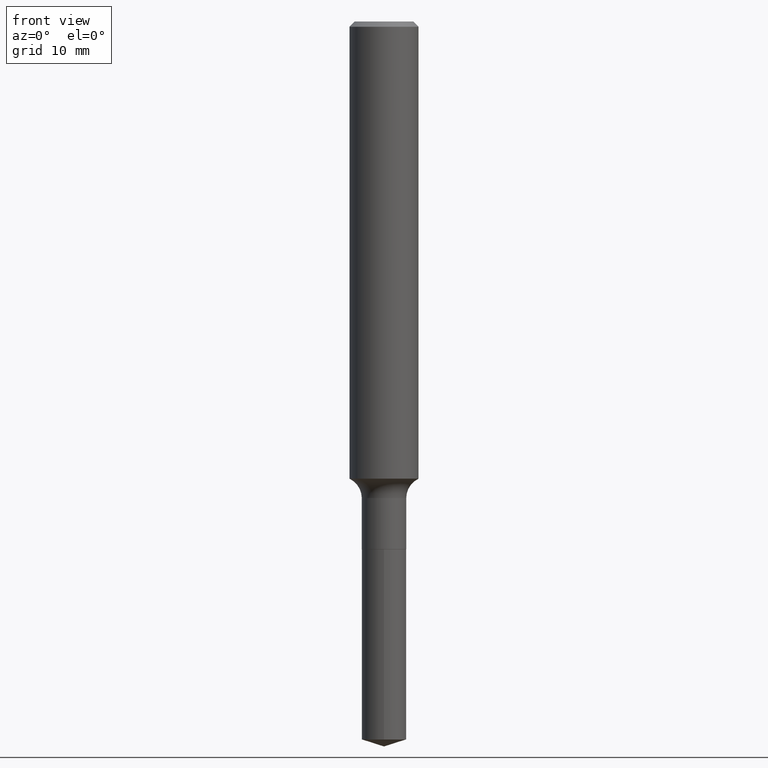
[diagram: clean part render]
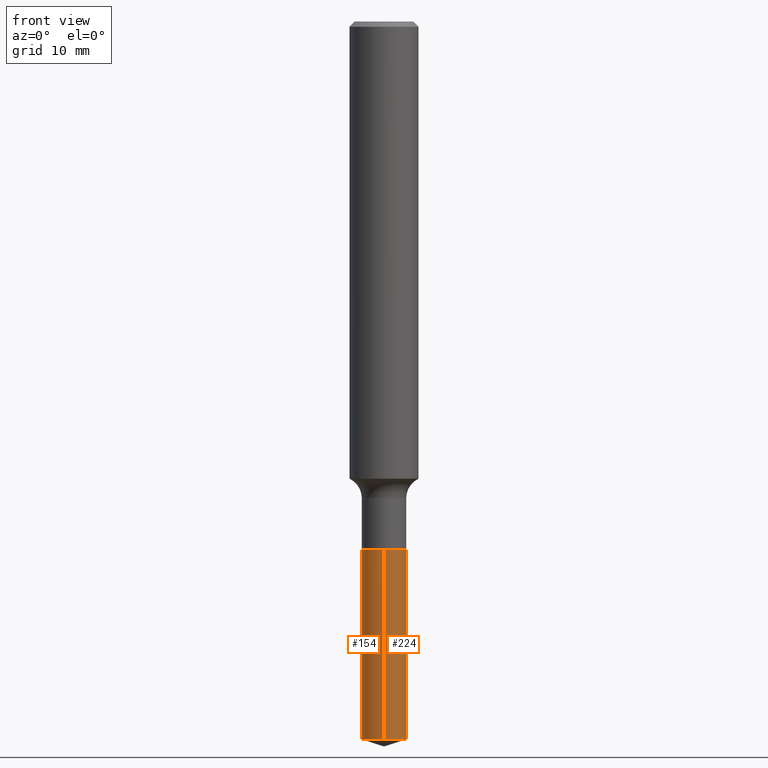
[diagram: same view with one multi-face feature highlighted, each face labeled with its STEP entity id]
A machine part, front view. The highlighted faces form ONE feature: a constant-radius fillet chain: 2 tangent blend faces with common blend radius 2.0447 mm. The faces share edges in the B-rep.
Their STEP definitions:
[1] entity #154 (Cylinder):
#34 = CARTESIAN_POINT ( 'NONE',  ( 4.673290888619796010E-29, -6.672220838529250908E-15, -1.910999999999999810 ) ) ;
#41 = EDGE_CURVE ( 'NONE', #440, #401, #192, .T. ) ;
#51 = LINE ( 'NONE', #474, #273 ) ;
#68 = DIRECTION ( 'NONE',  ( -6.982962677686266711E-15, -1.000000000000000000, 3.393599992129519526E-15 ) ) ;
#81 = DIRECTION ( 'NONE',  ( -2.444714620977216866E-29, 3.492561374986442879E-15, 1.000000000000000000 ) ) ;
#83 = CARTESIAN_POINT ( 'NONE',  ( 4.673290888619796010E-29, -6.672220838529250908E-15, -1.910999999999999810 ) ) ;
#112 = LINE ( 'NONE', #421, #338 ) ;
#114 = EDGE_CURVE ( 'NONE', #314, #480, #227, .T. ) ;
#154 = ADVANCED_FACE ( 'NONE', ( #191 ), #262, .T. ) ;
#182 = EDGE_CURVE ( 'NONE', #480, #401, #112, .T. ) ;
#191 = FACE_OUTER_BOUND ( 'NONE', #347, .T. ) ;
#192 = CIRCLE ( 'NONE', #200, 0.08050000000000000211 ) ;
#200 = AXIS2_PLACEMENT_3D ( 'NONE', #34, #412, #68 ) ;
#223 = ORIENTED_EDGE ( 'NONE', *, *, #41, .F. ) ;
#226 = DIRECTION ( 'NONE',  ( -2.444714620977216866E-29, 3.492561374986442879E-15, 1.000000000000000000 ) ) ;
#227 = CIRCLE ( 'NONE', #353, 0.08050000000000000211 ) ;
#262 = CYLINDRICAL_SURFACE ( 'NONE', #454, 0.08050000000000000211 ) ;
#266 = DIRECTION ( 'NONE',  ( -2.444714620977216866E-29, 3.492561374986442485E-15, 1.000000000000000000 ) ) ;
#273 = VECTOR ( 'NONE', #359, 39.37007874015748143 ) ;
#285 = ORIENTED_EDGE ( 'NONE', *, *, #418, .F. ) ;
#294 = CARTESIAN_POINT ( 'NONE',  ( 6.356766475486046114E-29, -9.077263030354262990E-15, -2.599618447495241735 ) ) ;
#314 = VERTEX_POINT ( 'NONE', #460 ) ;
#322 = ORIENTED_EDGE ( 'NONE', *, *, #114, .T. ) ;
#338 = VECTOR ( 'NONE', #266, 39.37007874015748143 ) ;
#347 = EDGE_LOOP ( 'NONE', ( #285, #322, #475, #223 ) ) ;
#353 = AXIS2_PLACEMENT_3D ( 'NONE', #294, #226, #408 ) ;
#357 = CARTESIAN_POINT ( 'NONE',  ( 5.719869022869443651E-16, 0.08049999999999332689, -1.911000000000000254 ) ) ;
#359 = DIRECTION ( 'NONE',  ( -2.444714620977216866E-29, 3.492561374986442485E-15, 1.000000000000000000 ) ) ;
#401 = VERTEX_POINT ( 'NONE', #429 ) ;
#408 = DIRECTION ( 'NONE',  ( -6.982962677686266711E-15, -1.000000000000000000, 6.787199984259039052E-15 ) ) ;
#412 = DIRECTION ( 'NONE',  ( -2.444714620977216866E-29, 3.492561374986442879E-15, 1.000000000000000000 ) ) ;
#418 = EDGE_CURVE ( 'NONE', #314, #440, #51, .T. ) ;
#421 = CARTESIAN_POINT ( 'NONE',  ( -5.621284955536977223E-16, -0.08050000000000667733, -1.910999999999999588 ) ) ;
#422 = DIRECTION ( 'NONE',  ( -6.982962677686266711E-15, -1.000000000000000000, 3.393599992129519526E-15 ) ) ;
#429 = CARTESIAN_POINT ( 'NONE',  ( -5.621284955536977223E-16, -0.08050000000000667733, -1.910999999999999588 ) ) ;
#440 = VERTEX_POINT ( 'NONE', #357 ) ;
#454 = AXIS2_PLACEMENT_3D ( 'NONE', #83, #81, #422 ) ;
#460 = CARTESIAN_POINT ( 'NONE',  ( 5.719869022869439707E-16, 0.08049999999999089828, -2.599618447495242179 ) ) ;
#474 = CARTESIAN_POINT ( 'NONE',  ( 5.719869022869272074E-16, 0.08049999999999332689, -1.911000000000000254 ) ) ;
#475 = ORIENTED_EDGE ( 'NONE', *, *, #182, .T. ) ;
#479 = CARTESIAN_POINT ( 'NONE',  ( -5.621284955536807618E-16, -0.08050000000000906430, -2.599618447495240847 ) ) ;
#480 = VERTEX_POINT ( 'NONE', #479 ) ;
[2] entity #224 (Cylinder):
#3 = CIRCLE ( 'NONE', #288, 0.08050000000000000211 ) ;
#6 = ORIENTED_EDGE ( 'NONE', *, *, #418, .T. ) ;
#11 = CYLINDRICAL_SURFACE ( 'NONE', #298, 0.08050000000000000211 ) ;
#30 = ORIENTED_EDGE ( 'NONE', *, *, #182, .F. ) ;
#33 = EDGE_CURVE ( 'NONE', #401, #440, #328, .T. ) ;
#38 = CARTESIAN_POINT ( 'NONE',  ( 4.673290888619796010E-29, -6.672220838529250908E-15, -1.910999999999999810 ) ) ;
#51 = LINE ( 'NONE', #474, #273 ) ;
#80 = DIRECTION ( 'NONE',  ( -6.982962677686266711E-15, -1.000000000000000000, 3.393599992129519526E-15 ) ) ;
#112 = LINE ( 'NONE', #421, #338 ) ;
#160 = CARTESIAN_POINT ( 'NONE',  ( 4.673290888619796010E-29, -6.672220838529250908E-15, -1.910999999999999810 ) ) ;
#162 = DIRECTION ( 'NONE',  ( -2.444714620977216866E-29, 3.492561374986442879E-15, 1.000000000000000000 ) ) ;
#182 = EDGE_CURVE ( 'NONE', #480, #401, #112, .T. ) ;
#224 = ADVANCED_FACE ( 'NONE', ( #342 ), #11, .T. ) ;
#234 = CARTESIAN_POINT ( 'NONE',  ( 6.356766475486046114E-29, -9.077263030354262990E-15, -2.599618447495241735 ) ) ;
#236 = DIRECTION ( 'NONE',  ( -6.982962677686266711E-15, -1.000000000000000000, 6.787199984259039052E-15 ) ) ;
#239 = DIRECTION ( 'NONE',  ( -2.444714620977216866E-29, 3.492561374986442879E-15, 1.000000000000000000 ) ) ;
#250 = EDGE_CURVE ( 'NONE', #480, #314, #3, .T. ) ;
#266 = DIRECTION ( 'NONE',  ( -2.444714620977216866E-29, 3.492561374986442485E-15, 1.000000000000000000 ) ) ;
#269 = ORIENTED_EDGE ( 'NONE', *, *, #33, .F. ) ;
#273 = VECTOR ( 'NONE', #359, 39.37007874015748143 ) ;
#283 = EDGE_LOOP ( 'NONE', ( #427, #6, #269, #30 ) ) ;
#288 = AXIS2_PLACEMENT_3D ( 'NONE', #234, #239, #236 ) ;
#298 = AXIS2_PLACEMENT_3D ( 'NONE', #160, #162, #80 ) ;
#314 = VERTEX_POINT ( 'NONE', #460 ) ;
#324 = DIRECTION ( 'NONE',  ( -6.982962677686266711E-15, -1.000000000000000000, 3.393599992129519526E-15 ) ) ;
#328 = CIRCLE ( 'NONE', #405, 0.08050000000000000211 ) ;
#338 = VECTOR ( 'NONE', #266, 39.37007874015748143 ) ;
#342 = FACE_OUTER_BOUND ( 'NONE', #283, .T. ) ;
#357 = CARTESIAN_POINT ( 'NONE',  ( 5.719869022869443651E-16, 0.08049999999999332689, -1.911000000000000254 ) ) ;
#359 = DIRECTION ( 'NONE',  ( -2.444714620977216866E-29, 3.492561374986442485E-15, 1.000000000000000000 ) ) ;
#366 = DIRECTION ( 'NONE',  ( -2.444714620977216866E-29, 3.492561374986442879E-15, 1.000000000000000000 ) ) ;
#401 = VERTEX_POINT ( 'NONE', #429 ) ;
#405 = AXIS2_PLACEMENT_3D ( 'NONE', #38, #366, #324 ) ;
#418 = EDGE_CURVE ( 'NONE', #314, #440, #51, .T. ) ;
#421 = CARTESIAN_POINT ( 'NONE',  ( -5.621284955536977223E-16, -0.08050000000000667733, -1.910999999999999588 ) ) ;
#427 = ORIENTED_EDGE ( 'NONE', *, *, #250, .T. ) ;
#429 = CARTESIAN_POINT ( 'NONE',  ( -5.621284955536977223E-16, -0.08050000000000667733, -1.910999999999999588 ) ) ;
#440 = VERTEX_POINT ( 'NONE', #357 ) ;
#460 = CARTESIAN_POINT ( 'NONE',  ( 5.719869022869439707E-16, 0.08049999999999089828, -2.599618447495242179 ) ) ;
#474 = CARTESIAN_POINT ( 'NONE',  ( 5.719869022869272074E-16, 0.08049999999999332689, -1.911000000000000254 ) ) ;
#479 = CARTESIAN_POINT ( 'NONE',  ( -5.621284955536807618E-16, -0.08050000000000906430, -2.599618447495240847 ) ) ;
#480 = VERTEX_POINT ( 'NONE', #479 ) ;